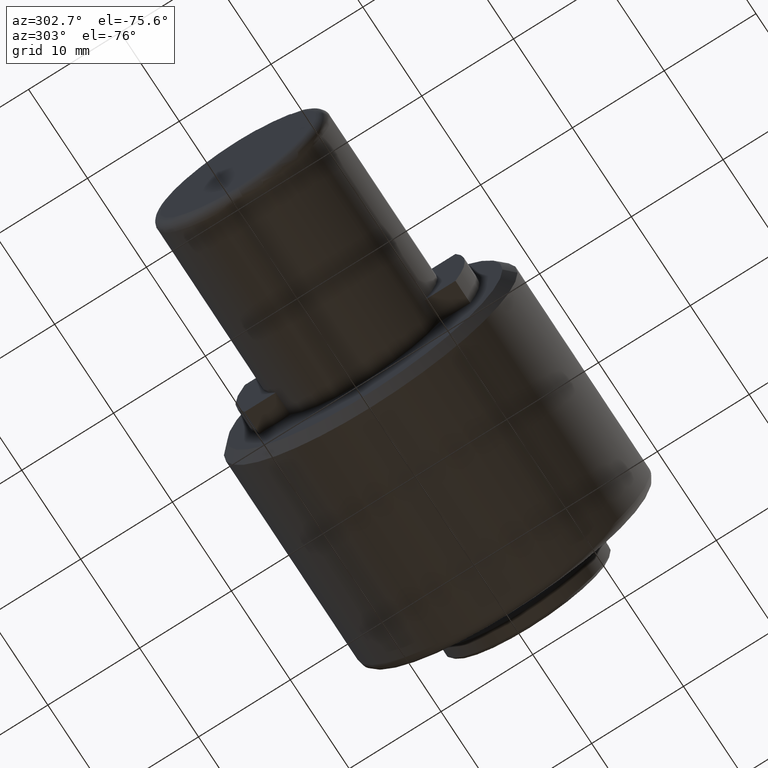
[diagram: clean part render]
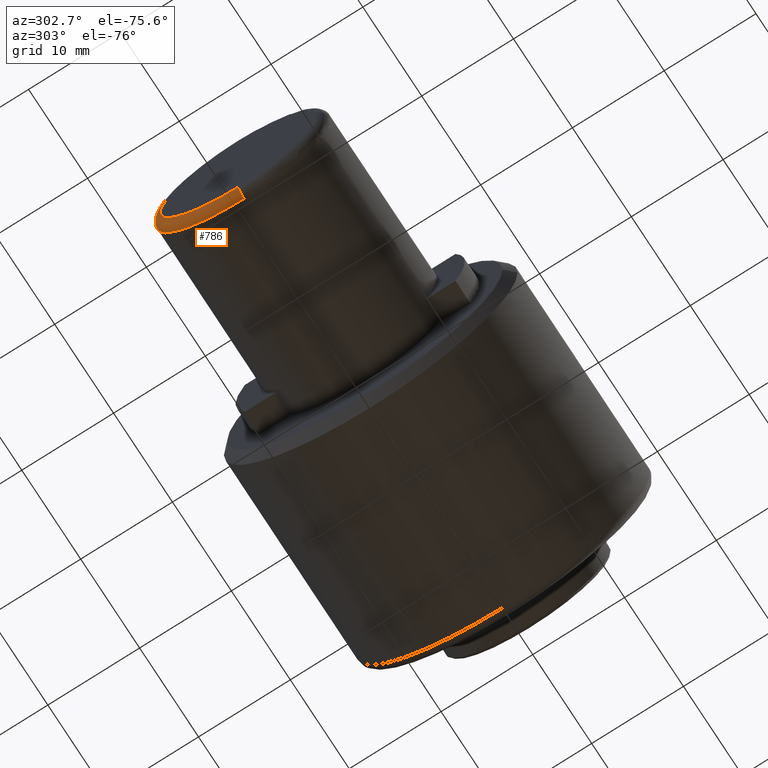
[diagram: same view with one face highlighted and labeled with its STEP entity id]
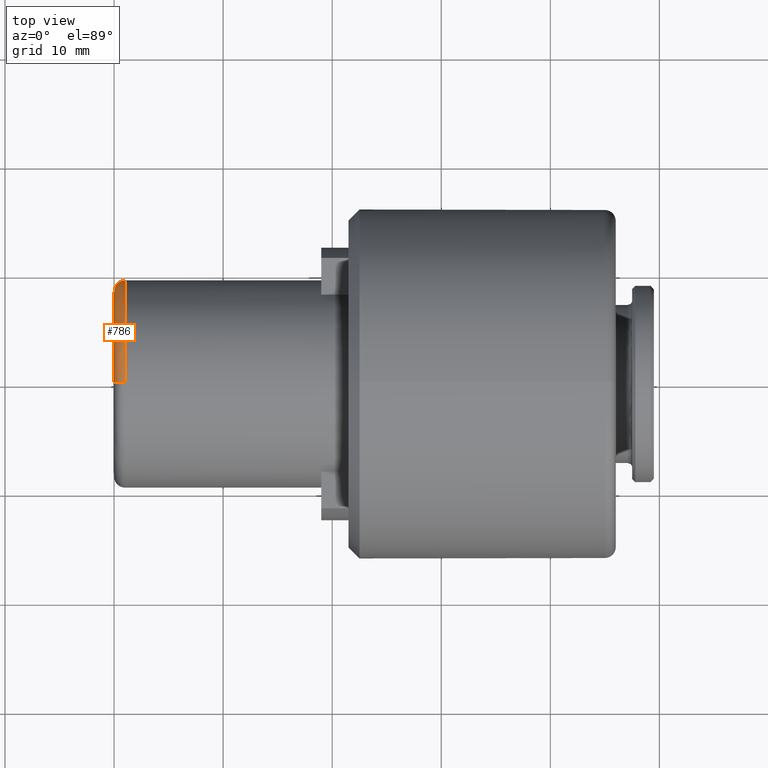
[diagram: same view with one face highlighted and labeled with its STEP entity id]
A machine part, auxiliary view. The second image highlights one B-rep face of the part: STEP entity #786.
A second angle (top view) of the same face is appended — the face is thin or edge-on in the first view.
In plain terms, the highlighted toroidal blend (fillet) surface has major radius 8.5 mm and minor (blend) radius 1 mm.
Its self-contained STEP definition (entity closure, byte-faithful):
#9 = DIRECTION ( 'NONE',  ( 0.0000000000000000000, 1.000000000000000000, -1.224646799147353200E-016 ) ) ;
#23 = EDGE_CURVE ( 'NONE', #669, #984, #1047, .T. ) ;
#26 = CARTESIAN_POINT ( 'NONE',  ( 1.000000000000000900, -3.743350658686794500E-015, -8.500000000000000000 ) ) ;
#36 = CARTESIAN_POINT ( 'NONE',  ( 1.000000000000000900, -3.743350658686794500E-015, 0.0000000000000000000 ) ) ;
#60 = DIRECTION ( 'NONE',  ( 1.000000000000000000, -0.0000000000000000000, 0.0000000000000000000 ) ) ;
#61 = DIRECTION ( 'NONE',  ( 0.0000000000000000000, 0.0000000000000000000, -1.000000000000000000 ) ) ;
#75 = VERTEX_POINT ( 'NONE', #510 ) ;
#96 = CIRCLE ( 'NONE', #364, 1.000000000000000900 ) ;
#98 = DIRECTION ( 'NONE',  ( 0.0000000000000000000, 0.0000000000000000000, -1.000000000000000000 ) ) ;
#125 = FACE_OUTER_BOUND ( 'NONE', #754, .T. ) ;
#154 = DIRECTION ( 'NONE',  ( 0.0000000000000000000, 0.0000000000000000000, -1.000000000000000000 ) ) ;
#170 = ORIENTED_EDGE ( 'NONE', *, *, #1147, .F. ) ;
#185 = AXIS2_PLACEMENT_3D ( 'NONE', #863, #306, #884 ) ;
#220 = CARTESIAN_POINT ( 'NONE',  ( 1.000000000000000900, 9.499999999999996400, 1.163414459189985500E-015 ) ) ;
#233 = CIRCLE ( 'NONE', #906, 1.000000000000000900 ) ;
#243 = AXIS2_PLACEMENT_3D ( 'NONE', #36, #980, #61 ) ;
#249 = CIRCLE ( 'NONE', #185, 8.500000000000000000 ) ;
#291 = EDGE_CURVE ( 'NONE', #300, #687, #233, .T. ) ;
#300 = VERTEX_POINT ( 'NONE', #950 ) ;
#306 = DIRECTION ( 'NONE',  ( -1.000000000000000000, 0.0000000000000000000, -0.0000000000000000000 ) ) ;
#364 = AXIS2_PLACEMENT_3D ( 'NONE', #672, #9, #1081 ) ;
#457 = CARTESIAN_POINT ( 'NONE',  ( 1.000000000000000900, -2.579936199496809100E-015, 9.500000000000001800 ) ) ;
#504 = EDGE_CURVE ( 'NONE', #75, #300, #249, .T. ) ;
#510 = CARTESIAN_POINT ( 'NONE',  ( 0.0000000000000000000, -2.641168539454176600E-015, 8.500000000000000000 ) ) ;
#524 = ORIENTED_EDGE ( 'NONE', *, *, #291, .F. ) ;
#628 = DIRECTION ( 'NONE',  ( 1.000000000000000000, -0.0000000000000000000, 0.0000000000000000000 ) ) ;
#643 = ORIENTED_EDGE ( 'NONE', *, *, #650, .T. ) ;
#650 = EDGE_CURVE ( 'NONE', #75, #984, #96, .T. ) ;
#669 = VERTEX_POINT ( 'NONE', #220 ) ;
#672 = CARTESIAN_POINT ( 'NONE',  ( 1.000000000000000900, -2.702400879411544200E-015, 8.500000000000000000 ) ) ;
#681 = CARTESIAN_POINT ( 'NONE',  ( 1.000000000000000900, -3.743350658686794500E-015, 0.0000000000000000000 ) ) ;
#687 = VERTEX_POINT ( 'NONE', #791 ) ;
#754 = EDGE_LOOP ( 'NONE', ( #828, #643, #792, #170, #524 ) ) ;
#760 = DIRECTION ( 'NONE',  ( 0.0000000000000000000, -1.000000000000000000, -0.0000000000000000000 ) ) ;
#786 = ADVANCED_FACE ( 'NONE', ( #125 ), #1069, .T. ) ;
#791 = CARTESIAN_POINT ( 'NONE',  ( 1.000000000000000900, -3.743350658686794500E-015, -9.500000000000001800 ) ) ;
#792 = ORIENTED_EDGE ( 'NONE', *, *, #23, .F. ) ;
#828 = ORIENTED_EDGE ( 'NONE', *, *, #504, .F. ) ;
#863 = CARTESIAN_POINT ( 'NONE',  ( 0.0000000000000000000, -3.743350658686794500E-015, 0.0000000000000000000 ) ) ;
#884 = DIRECTION ( 'NONE',  ( 0.0000000000000000000, 0.0000000000000000000, -1.000000000000000000 ) ) ;
#887 = CIRCLE ( 'NONE', #902, 9.500000000000000000 ) ;
#902 = AXIS2_PLACEMENT_3D ( 'NONE', #681, #628, #1064 ) ;
#906 = AXIS2_PLACEMENT_3D ( 'NONE', #26, #760, #98 ) ;
#950 = CARTESIAN_POINT ( 'NONE',  ( 0.0000000000000000000, -3.743350658686794500E-015, -8.500000000000000000 ) ) ;
#980 = DIRECTION ( 'NONE',  ( 1.000000000000000000, -0.0000000000000000000, 0.0000000000000000000 ) ) ;
#984 = VERTEX_POINT ( 'NONE', #457 ) ;
#1047 = CIRCLE ( 'NONE', #243, 9.500000000000000000 ) ;
#1064 = DIRECTION ( 'NONE',  ( 0.0000000000000000000, 0.0000000000000000000, -1.000000000000000000 ) ) ;
#1069 = TOROIDAL_SURFACE ( 'NONE', #1208, 8.500000000000000000, 1.000000000000000000 ) ;
#1081 = DIRECTION ( 'NONE',  ( 0.0000000000000000000, 1.224646799147353500E-016, 1.000000000000000000 ) ) ;
#1147 = EDGE_CURVE ( 'NONE', #687, #669, #887, .T. ) ;
#1202 = CARTESIAN_POINT ( 'NONE',  ( 1.000000000000000900, -3.743350658686794500E-015, 0.0000000000000000000 ) ) ;
#1208 = AXIS2_PLACEMENT_3D ( 'NONE', #1202, #60, #154 ) ;